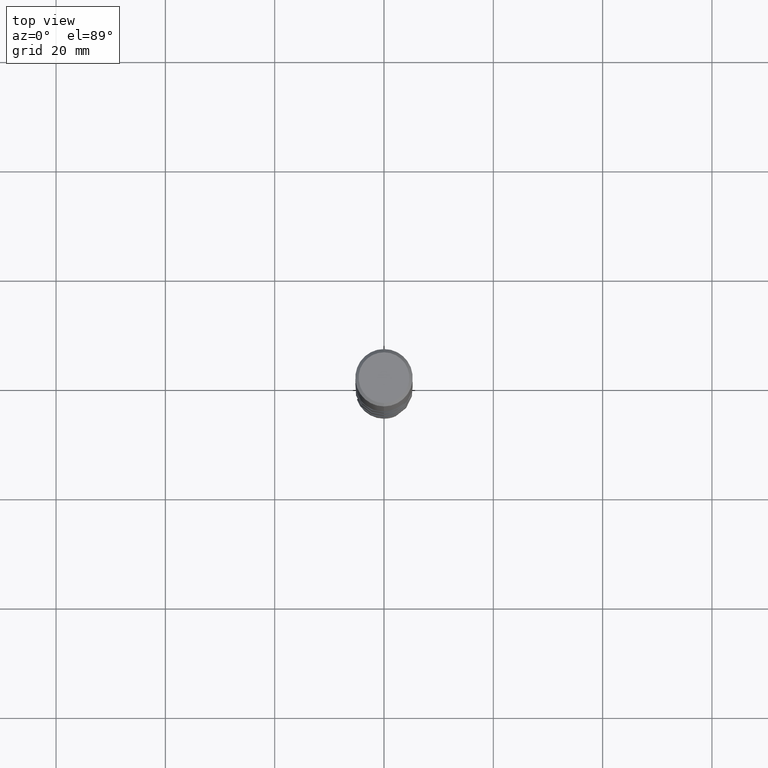
[diagram: clean part render]
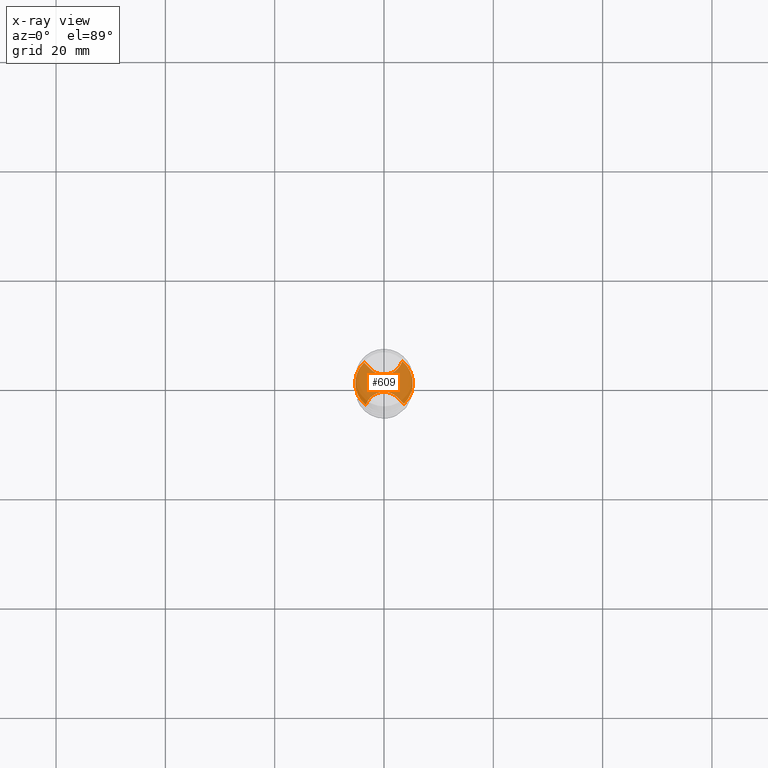
[diagram: x-ray — body ghosted, one internal face saturated and labeled with its STEP entity id]
A machine part, top view, then the same camera in x-ray: the body is ghosted and one INTERNAL B-rep face — a face not visible from any outside direction — is saturated and labeled: STEP entity #609.
In plain terms, the highlighted planar face has unit normal (-0, 0, 1).
Its self-contained STEP definition (entity closure, byte-faithful):
#277=VERTEX_POINT('',#755);
#327=VERTEX_POINT('',#811);
#333=VERTEX_POINT('',#817);
#369=VERTEX_POINT('',#854);
#419=EDGE_CURVE('',#579,#369,#908,.T.);
#433=EDGE_CURVE('',#277,#333,#923,.T.);
#487=EDGE_CURVE('',#327,#557,#980,.T.);
#517=EDGE_CURVE('',#277,#369,#1014,.T.);
#557=VERTEX_POINT('',#1057);
#579=VERTEX_POINT('',#1082);
#601=EDGE_CURVE('',#333,#557,#1106,.T.);
#607=EDGE_CURVE('',#327,#579,#1112,.T.);
#609=ADVANCED_FACE('',(#1114),#1115,.T.);
#755=CARTESIAN_POINT('',(-3.34297135154456,-4.04796153054254,-59.5));
#811=CARTESIAN_POINT('',(3.34297135154456,4.04796153054254,-59.5));
#817=CARTESIAN_POINT('',(2.47799873408221,-2.60046661560496,-59.5));
#854=CARTESIAN_POINT('',(-3.6504052941124,3.7730612503266,-59.5));
#908=B_SPLINE_CURVE_WITH_KNOTS('',3,(#3552,#3553,#3554,#3555),.UNSPECIFIED.,.F.,.F.,(4,4),(0.0,3.80012328541582),.UNSPECIFIED.);
#923=B_SPLINE_CURVE_WITH_KNOTS('',3,(#3723,#3724,#3725,#3726,#3727,#3728,#3729,#3730,#3731,#3732,#3733,#3734,#3735,#3736,#3737,#3738),.UNSPECIFIED.,.F.,.F.,(4,2,2,2,2,2,2,4),(0.0,1.36719226012704,2.73421766601248,4.10121632541585,5.4683096273206,6.83556320599325,7.66555082928044,8.49555353779003),.UNSPECIFIED.);
#980=CIRCLE('',#3877,5.2499);
#1014=CIRCLE('',#4249,5.2499);
#1057=CARTESIAN_POINT('',(3.6504052941124,-3.7730612503266,-59.5));
#1082=CARTESIAN_POINT('',(-2.47799873408221,2.60046661560495,-59.5));
#1106=B_SPLINE_CURVE_WITH_KNOTS('',3,(#4629,#4630,#4631,#4632),.UNSPECIFIED.,.F.,.F.,(4,4),(0.0,3.80012328563282),.UNSPECIFIED.);
#1112=B_SPLINE_CURVE_WITH_KNOTS('',3,(#4669,#4670,#4671,#4672,#4673,#4674,#4675,#4676,#4677,#4678,#4679,#4680,#4681,#4682,#4683,#4684),.UNSPECIFIED.,.F.,.F.,(4,2,2,2,2,2,2,4),(0.0,1.3671922601271,2.73421766601259,4.10121632541603,5.46830962732086,6.83556320599355,7.66555082928077,8.49555353779033),.UNSPECIFIED.);
#1114=FACE_OUTER_BOUND('',#4686,.T.);
#1115=PLANE('',#4687);
#3552=CARTESIAN_POINT('',(-2.47799873415292,2.60046661553425,-59.5));
#3553=CARTESIAN_POINT('',(-3.3736282406808,3.49623240013107,-59.5));
#3554=CARTESIAN_POINT('',(-4.28071060873957,4.40346886791946,-59.5));
#3555=CARTESIAN_POINT('',(-5.17696623014777,5.2999,-59.5));
#3723=CARTESIAN_POINT('',(-3.48962431480194,-5.2999,-59.5));
#3724=CARTESIAN_POINT('',(-3.51898188648197,-4.8451158176042,-59.5));
#3725=CARTESIAN_POINT('',(-3.45923111403256,-4.38894840754714,-59.5));
#3726=CARTESIAN_POINT('',(-3.16823346470284,-3.52524872337687,-59.5));
#3727=CARTESIAN_POINT('',(-2.93979137958321,-3.12597404692501,-59.5));
#3728=CARTESIAN_POINT('',(-2.34271488136367,-2.43747039919458,-59.5));
#3729=CARTESIAN_POINT('',(-1.9797954517166,-2.15482622703768,-59.5));
#3730=CARTESIAN_POINT('',(-1.16601279171812,-1.74453617148193,-59.5));
#3731=CARTESIAN_POINT('',(-0.722927541957802,-1.62082531995793,-59.5));
#3732=CARTESIAN_POINT('',(0.185779527058476,-1.55018783022295,-59.5));
#3733=CARTESIAN_POINT('',(0.642714396569735,-1.60395715472978,-59.5));
#3734=CARTESIAN_POINT('',(1.33980870530504,-1.82865917934846,-59.5));
#3735=CARTESIAN_POINT('',(1.59214072537157,-1.94445863329884,-59.5));
#3736=CARTESIAN_POINT('',(2.06425708872635,-2.23304394200699,-59.5));
#3737=CARTESIAN_POINT('',(2.28238118646996,-2.40481634549339,-59.5));
#3738=CARTESIAN_POINT('',(2.47799873408221,-2.60046661560496,-59.5));
#3877=AXIS2_PLACEMENT_3D('',#7046,#7047,#7048);
#4249=AXIS2_PLACEMENT_3D('',#7092,#7093,#7094);
#4629=CARTESIAN_POINT('',(2.47799873415292,-2.60046661553426,-59.5));
#4630=CARTESIAN_POINT('',(3.37362824073194,-3.49623240018222,-59.5));
#4631=CARTESIAN_POINT('',(4.2807106087547,-4.4034688679346,-59.5));
#4632=CARTESIAN_POINT('',(5.17696623014776,-5.2999,-59.5));
#4669=CARTESIAN_POINT('',(3.48962431480194,5.2999,-59.5));
#4670=CARTESIAN_POINT('',(3.51898188648198,4.84511581760418,-59.5));
#4671=CARTESIAN_POINT('',(3.45923111403255,4.38894840754713,-59.5));
#4672=CARTESIAN_POINT('',(3.16823346470284,3.52524872337687,-59.5));
#4673=CARTESIAN_POINT('',(2.93979137958322,3.12597404692501,-59.5));
#4674=CARTESIAN_POINT('',(2.34271488136367,2.43747039919457,-59.5));
#4675=CARTESIAN_POINT('',(1.97979545171659,2.15482622703767,-59.5));
#4676=CARTESIAN_POINT('',(1.16601279171813,1.74453617148193,-59.5));
#4677=CARTESIAN_POINT('',(0.722927541957827,1.62082531995793,-59.5));
#4678=CARTESIAN_POINT('',(-0.185779527058471,1.55018783022294,-59.5));
#4679=CARTESIAN_POINT('',(-0.642714396569737,1.60395715472978,-59.5));
#4680=CARTESIAN_POINT('',(-1.33980870530502,1.82865917934845,-59.5));
#4681=CARTESIAN_POINT('',(-1.59214072537155,1.94445863329882,-59.5));
#4682=CARTESIAN_POINT('',(-2.06425708872634,2.23304394200698,-59.5));
#4683=CARTESIAN_POINT('',(-2.28238118646995,2.40481634549337,-59.5));
#4684=CARTESIAN_POINT('',(-2.47799873408221,2.60046661560496,-59.5));
#4686=EDGE_LOOP('',(#7207,#7208,#7209,#7210,#7211,#7212));
#4687=AXIS2_PLACEMENT_3D('',#7213,#7214,#7215);
#7046=CARTESIAN_POINT('',(0.0,0.0,-59.5));
#7047=DIRECTION('',(0.0,0.0,-1.0));
#7048=DIRECTION('',(0.0,1.0,0.0));
#7092=CARTESIAN_POINT('',(0.0,0.0,-59.5));
#7093=DIRECTION('',(0.0,0.0,-1.0));
#7094=DIRECTION('',(0.0,1.0,0.0));
#7207=ORIENTED_EDGE('',*,*,#601,.T.);
#7208=ORIENTED_EDGE('',*,*,#487,.F.);
#7209=ORIENTED_EDGE('',*,*,#607,.T.);
#7210=ORIENTED_EDGE('',*,*,#419,.T.);
#7211=ORIENTED_EDGE('',*,*,#517,.F.);
#7212=ORIENTED_EDGE('',*,*,#433,.T.);
#7213=CARTESIAN_POINT('',(0.0,2.62495,-59.5));
#7214=DIRECTION('',(-0.0,0.0,1.0));
#7215=DIRECTION('',(0.0,-1.0,0.0));